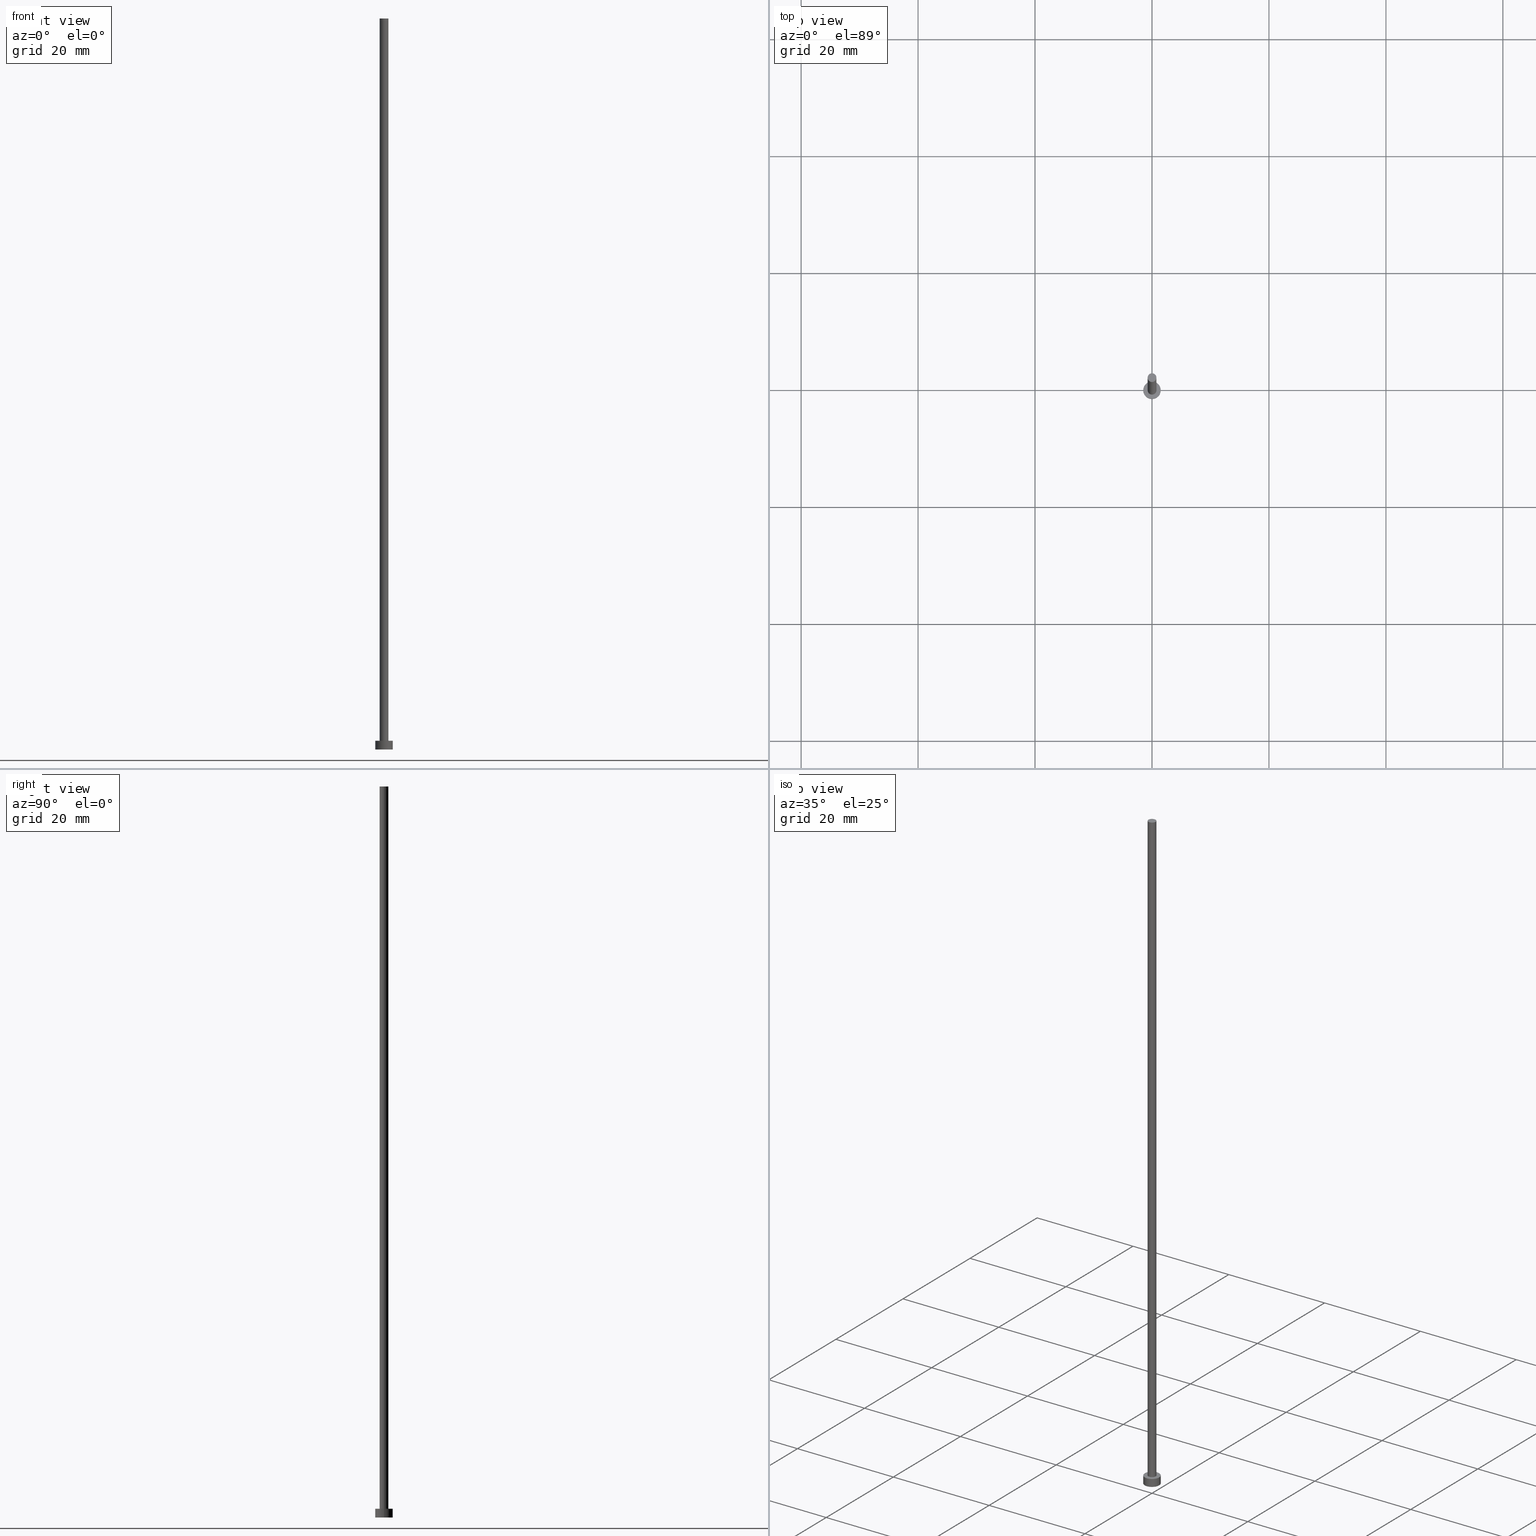
[diagram: canonical four-view strip — front | top / right | iso, engineering-drawing reading convention]
A machine part, canonical four-view strip (front | top / right | iso — engineering-drawing reading convention). The complete STEP part file that produces these views, byte-faithful:
ISO-10303-21;
HEADER;
FILE_DESCRIPTION (( 'STEP AP203' ),
    '1' );
FILE_NAME ('c43a.STEP',
    '2023-02-13T17:18:25',
    ( '' ),
    ( '' ),
    'SwSTEP 2.0',
    'SolidWorks 2019',
    '' );
FILE_SCHEMA (( 'CONFIG_CONTROL_DESIGN' ));
ENDSEC;

DATA;
#1 = PERSON_AND_ORGANIZATION_ROLE ( 'design_owner' ) ;
#2 = CIRCLE ( 'NONE', #82, 1.500000000000000222 ) ;
#3 = EDGE_CURVE ( 'NONE', #176, #21, #44, .T. ) ;
#4 = APPROVAL_PERSON_ORGANIZATION ( #126, #166, #43 ) ;
#5 = COORDINATED_UNIVERSAL_TIME_OFFSET ( 1, 0, .AHEAD. ) ;
#6 = ORIENTED_EDGE ( 'NONE', *, *, #200, .F. ) ;
#7 = CIRCLE ( 'NONE', #204, 1.500000000000000222 ) ;
#8 = CIRCLE ( 'NONE', #42, 0.7500000000000001110 ) ;
#9 = CARTESIAN_POINT ( 'NONE',  ( 0.000000000000000000, 0.000000000000000000, 125.0000000000000000 ) ) ;
#10 = ORIENTED_EDGE ( 'NONE', *, *, #141, .T. ) ;
#11 = ORIENTED_EDGE ( 'NONE', *, *, #135, .F. ) ;
#12 =( GEOMETRIC_REPRESENTATION_CONTEXT ( 3 ) GLOBAL_UNCERTAINTY_ASSIGNED_CONTEXT ( ( #224 ) ) GLOBAL_UNIT_ASSIGNED_CONTEXT ( ( #251, #144, #234 ) ) REPRESENTATION_CONTEXT ( 'NONE', 'WORKASPACE' ) );
#13 = DIRECTION ( 'NONE',  ( 0.000000000000000000, 0.000000000000000000, 1.000000000000000000 ) ) ;
#14 = LINE ( 'NONE', #119, #29 ) ;
#15 = DIRECTION ( 'NONE',  ( -0.000000000000000000, -0.000000000000000000, -1.000000000000000000 ) ) ;
#16 = CC_DESIGN_PERSON_AND_ORGANIZATION_ASSIGNMENT ( #220, #128, ( #158 ) ) ;
#17 = CARTESIAN_POINT ( 'NONE',  ( 0.000000000000000000, 0.000000000000000000, 0.000000000000000000 ) ) ;
#18 = AXIS2_PLACEMENT_3D ( 'NONE', #145, #90, #165 ) ;
#19 = AXIS2_PLACEMENT_3D ( 'NONE', #9, #83, #156 ) ;
#20 = DATE_AND_TIME ( #95, #211 ) ;
#21 = VERTEX_POINT ( 'NONE', #246 ) ;
#22 = CALENDAR_DATE ( 2023, 13, 2 ) ;
#23 = PERSON_AND_ORGANIZATION_ROLE ( 'classification_officer' ) ;
#24 = APPROVAL_DATE_TIME ( #77, #216 ) ;
#25 = EDGE_LOOP ( 'NONE', ( #244, #102 ) ) ;
#26 = CARTESIAN_POINT ( 'NONE',  ( -1.500000000000000222, 0.000000000000000000, 1.500000000000000000 ) ) ;
#27 = EDGE_CURVE ( 'NONE', #197, #230, #7, .T. ) ;
#28 = CARTESIAN_POINT ( 'NONE',  ( 0.000000000000000000, 0.000000000000000000, 125.0000000000000000 ) ) ;
#29 = VECTOR ( 'NONE', #253, 1000.000000000000000 ) ;
#30 = ORIENTED_EDGE ( 'NONE', *, *, #89, .F. ) ;
#31 = ORIENTED_EDGE ( 'NONE', *, *, #130, .F. ) ;
#32 = FACE_OUTER_BOUND ( 'NONE', #229, .T. ) ;
#33 = DIRECTION ( 'NONE',  ( -0.000000000000000000, -0.000000000000000000, -1.000000000000000000 ) ) ;
#34 = CARTESIAN_POINT ( 'NONE',  ( 1.500000000000000222, 1.836970198721030181E-16, 1.500000000000000000 ) ) ;
#35 = CYLINDRICAL_SURFACE ( 'NONE', #48, 1.500000000000000222 ) ;
#36 = ORGANIZATION ( 'NEUR�EN�', 'NEUR�EN�', '' ) ;
#37 = CARTESIAN_POINT ( 'NONE',  ( 0.000000000000000000, 0.000000000000000000, 125.0000000000000000 ) ) ;
#38 = ADVANCED_FACE ( 'NONE', ( #32 ), #116, .T. ) ;
#39 = ORIENTED_EDGE ( 'NONE', *, *, #226, .F. ) ;
#40 = AXIS2_PLACEMENT_3D ( 'NONE', #140, #136, #153 ) ;
#41 = COORDINATED_UNIVERSAL_TIME_OFFSET ( 1, 0, .AHEAD. ) ;
#42 = AXIS2_PLACEMENT_3D ( 'NONE', #181, #51, #69 ) ;
#43 = APPROVAL_ROLE ( '' ) ;
#44 = CIRCLE ( 'NONE', #70, 0.7500000000000001110 ) ;
#45 = DIRECTION ( 'NONE',  ( 1.000000000000000000, 0.000000000000000000, 0.000000000000000000 ) ) ;
#46 = VERTEX_POINT ( 'NONE', #85 ) ;
#47 = EDGE_LOOP ( 'NONE', ( #39, #11, #67, #199 ) ) ;
#48 = AXIS2_PLACEMENT_3D ( 'NONE', #74, #107, #120 ) ;
#49 = ORIENTED_EDGE ( 'NONE', *, *, #141, .F. ) ;
#50 = EDGE_CURVE ( 'NONE', #202, #197, #155, .T. ) ;
#51 = DIRECTION ( 'NONE',  ( 0.000000000000000000, 0.000000000000000000, 1.000000000000000000 ) ) ;
#52 = CIRCLE ( 'NONE', #236, 0.7500000000000001110 ) ;
#53 = CYLINDRICAL_SURFACE ( 'NONE', #63, 1.500000000000000222 ) ;
#54 = CARTESIAN_POINT ( 'NONE',  ( -1.500000000000000222, 0.000000000000000000, 0.000000000000000000 ) ) ;
#55 = DIRECTION ( 'NONE',  ( -1.000000000000000000, 0.000000000000000000, 0.000000000000000000 ) ) ;
#56 = CARTESIAN_POINT ( 'NONE',  ( 0.000000000000000000, 0.000000000000000000, 1.500000000000000000 ) ) ;
#57 = ADVANCED_FACE ( 'NONE', ( #65 ), #66, .T. ) ;
#58 = DIRECTION ( 'NONE',  ( 1.000000000000000000, 0.000000000000000000, 0.000000000000000000 ) ) ;
#59 = AXIS2_PLACEMENT_3D ( 'NONE', #133, #223, #45 ) ;
#60 = APPLICATION_PROTOCOL_DEFINITION ( 'international standard', 'config_control_design', 1994, #149 ) ;
#61 = COORDINATED_UNIVERSAL_TIME_OFFSET ( 1, 0, .AHEAD. ) ;
#62 = DATE_AND_TIME ( #96, #76 ) ;
#63 = AXIS2_PLACEMENT_3D ( 'NONE', #56, #33, #55 ) ;
#64 = EDGE_LOOP ( 'NONE', ( #49, #117, #115, #243 ) ) ;
#65 = FACE_OUTER_BOUND ( 'NONE', #108, .T. ) ;
#66 = CYLINDRICAL_SURFACE ( 'NONE', #40, 0.7500000000000001110 ) ;
#67 = ORIENTED_EDGE ( 'NONE', *, *, #50, .T. ) ;
#68 = FACE_OUTER_BOUND ( 'NONE', #47, .T. ) ;
#69 = DIRECTION ( 'NONE',  ( 1.000000000000000000, 0.000000000000000000, 0.000000000000000000 ) ) ;
#70 = AXIS2_PLACEMENT_3D ( 'NONE', #28, #84, #104 ) ;
#71 = CC_DESIGN_DATE_AND_TIME_ASSIGNMENT ( #93, #131, ( #139 ) ) ;
#72 = APPROVAL_PERSON_ORGANIZATION ( #129, #232, #169 ) ;
#73 = CARTESIAN_POINT ( 'NONE',  ( -0.7500000000000001110, 0.000000000000000000, 125.0000000000000000 ) ) ;
#74 = CARTESIAN_POINT ( 'NONE',  ( 0.000000000000000000, 0.000000000000000000, 1.500000000000000000 ) ) ;
#75 = APPROVAL_DATE_TIME ( #62, #232 ) ;
#76 = LOCAL_TIME ( 18, 18, 25.00000000000000000, #5 ) ;
#77 = DATE_AND_TIME ( #113, #143 ) ;
#78 = SHAPE_DEFINITION_REPRESENTATION ( #124, #132 ) ;
#79 = EDGE_LOOP ( 'NONE', ( #188, #218 ) ) ;
#80 = ADVANCED_FACE ( 'NONE', ( #114, #203 ), #180, .T. ) ;
#81 = DIRECTION ( 'NONE',  ( 0.000000000000000000, 0.000000000000000000, 1.000000000000000000 ) ) ;
#82 = AXIS2_PLACEMENT_3D ( 'NONE', #17, #210, #163 ) ;
#83 = DIRECTION ( 'NONE',  ( 0.000000000000000000, 0.000000000000000000, 1.000000000000000000 ) ) ;
#84 = DIRECTION ( 'NONE',  ( 0.000000000000000000, 0.000000000000000000, 1.000000000000000000 ) ) ;
#85 = CARTESIAN_POINT ( 'NONE',  ( 1.500000000000000222, 1.836970198721030181E-16, 1.500000000000000000 ) ) ;
#86 = DIRECTION ( 'NONE',  ( 1.000000000000000000, 0.000000000000000000, -0.000000000000000000 ) ) ;
#87 = DIRECTION ( 'NONE',  ( 1.000000000000000000, 0.000000000000000000, -0.000000000000000000 ) ) ;
#88 = DIRECTION ( 'NONE',  ( 1.000000000000000000, 0.000000000000000000, 0.000000000000000000 ) ) ;
#89 = EDGE_CURVE ( 'NONE', #46, #202, #109, .T. ) ;
#90 = DIRECTION ( 'NONE',  ( -0.000000000000000000, -0.000000000000000000, -1.000000000000000000 ) ) ;
#91 = LINE ( 'NONE', #34, #195 ) ;
#92 = DIRECTION ( 'NONE',  ( 0.000000000000000000, 0.000000000000000000, 1.000000000000000000 ) ) ;
#93 = DATE_AND_TIME ( #22, #175 ) ;
#94 = EDGE_CURVE ( 'NONE', #176, #198, #173, .T. ) ;
#95 = CALENDAR_DATE ( 2023, 13, 2 ) ;
#96 = CALENDAR_DATE ( 2023, 13, 2 ) ;
#97 = EDGE_LOOP ( 'NONE', ( #30, #174, #161, #138 ) ) ;
#98 = MECHANICAL_CONTEXT ( 'NONE', #146, 'mechanical' ) ;
#99 = CARTESIAN_POINT ( 'NONE',  ( 0.000000000000000000, 0.000000000000000000, 1.500000000000000000 ) ) ;
#100 = AXIS2_PLACEMENT_3D ( 'NONE', #37, #235, #123 ) ;
#101 = CARTESIAN_POINT ( 'NONE',  ( 0.000000000000000000, 0.000000000000000000, 0.000000000000000000 ) ) ;
#102 = ORIENTED_EDGE ( 'NONE', *, *, #248, .F. ) ;
#103 = ORIENTED_EDGE ( 'NONE', *, *, #130, .T. ) ;
#104 = DIRECTION ( 'NONE',  ( 1.000000000000000000, 0.000000000000000000, 0.000000000000000000 ) ) ;
#105 = CYLINDRICAL_SURFACE ( 'NONE', #18, 0.7500000000000001110 ) ;
#106 = CARTESIAN_POINT ( 'NONE',  ( 1.500000000000000222, 1.836970198721030181E-16, 0.000000000000000000 ) ) ;
#107 = DIRECTION ( 'NONE',  ( -0.000000000000000000, -0.000000000000000000, -1.000000000000000000 ) ) ;
#108 = EDGE_LOOP ( 'NONE', ( #31, #10, #152, #177 ) ) ;
#109 = CIRCLE ( 'NONE', #59, 1.500000000000000222 ) ;
#110 = CC_DESIGN_PERSON_AND_ORGANIZATION_ASSIGNMENT ( #219, #191, ( #151 ) ) ;
#111 = APPROVAL_DATE_TIME ( #20, #166 ) ;
#112 = PERSON_AND_ORGANIZATION ( #178, #36 ) ;
#113 = CALENDAR_DATE ( 2023, 13, 2 ) ;
#114 = FACE_BOUND ( 'NONE', #159, .T. ) ;
#115 = ORIENTED_EDGE ( 'NONE', *, *, #94, .T. ) ;
#116 = PLANE ( 'NONE',  #19 ) ;
#117 = ORIENTED_EDGE ( 'NONE', *, *, #3, .F. ) ;
#118 = AXIS2_PLACEMENT_3D ( 'NONE', #231, #205, #87 ) ;
#119 = CARTESIAN_POINT ( 'NONE',  ( 0.7500000000000001110, 9.184850993605150903E-17, 125.0000000000000000 ) ) ;
#120 = DIRECTION ( 'NONE',  ( -1.000000000000000000, 0.000000000000000000, 0.000000000000000000 ) ) ;
#121 = DIRECTION ( 'NONE',  ( 0.000000000000000000, 0.000000000000000000, 1.000000000000000000 ) ) ;
#122 = APPROVAL_PERSON_ORGANIZATION ( #213, #216, #255 ) ;
#123 = DIRECTION ( 'NONE',  ( 1.000000000000000000, 0.000000000000000000, 0.000000000000000000 ) ) ;
#124 = PRODUCT_DEFINITION_SHAPE ( 'NONE', 'NONE',  #158 ) ;
#125 = ADVANCED_FACE ( 'NONE', ( #68 ), #53, .T. ) ;
#126 = PERSON_AND_ORGANIZATION ( #178, #36 ) ;
#127 = AXIS2_PLACEMENT_3D ( 'NONE', #162, #212, #208 ) ;
#128 = PERSON_AND_ORGANIZATION_ROLE ( 'creator' ) ;
#129 = PERSON_AND_ORGANIZATION ( #178, #36 ) ;
#130 = EDGE_CURVE ( 'NONE', #21, #176, #215, .T. ) ;
#131 = DATE_TIME_ROLE ( 'classification_date' ) ;
#132 = ADVANCED_BREP_SHAPE_REPRESENTATION ( 'c43a', ( #228, #160 ), #12 ) ;
#133 = CARTESIAN_POINT ( 'NONE',  ( 0.000000000000000000, 0.000000000000000000, 1.500000000000000000 ) ) ;
#134 = ORIENTED_EDGE ( 'NONE', *, *, #3, .T. ) ;
#135 = EDGE_CURVE ( 'NONE', #202, #46, #250, .T. ) ;
#136 = DIRECTION ( 'NONE',  ( -0.000000000000000000, -0.000000000000000000, -1.000000000000000000 ) ) ;
#137 = PRODUCT ( 'c43a', 'c43a', '', ( #98 ) ) ;
#138 = ORIENTED_EDGE ( 'NONE', *, *, #50, .F. ) ;
#139 = SECURITY_CLASSIFICATION ( '', '', #192 ) ;
#140 = CARTESIAN_POINT ( 'NONE',  ( 0.000000000000000000, 0.000000000000000000, 125.0000000000000000 ) ) ;
#141 = EDGE_CURVE ( 'NONE', #21, #227, #14, .T. ) ;
#142 = FACE_OUTER_BOUND ( 'NONE', #25, .T. ) ;
#143 = LOCAL_TIME ( 18, 18, 25.00000000000000000, #254 ) ;
#144 =( NAMED_UNIT ( * ) PLANE_ANGLE_UNIT ( ) SI_UNIT ( $, .RADIAN. ) );
#145 = CARTESIAN_POINT ( 'NONE',  ( 0.000000000000000000, 0.000000000000000000, 125.0000000000000000 ) ) ;
#146 = APPLICATION_CONTEXT ( 'configuration controlled 3d designs of mechanical parts and assemblies' ) ;
#147 = CC_DESIGN_PERSON_AND_ORGANIZATION_ASSIGNMENT ( #112, #240, ( #151 ) ) ;
#148 = COORDINATED_UNIVERSAL_TIME_OFFSET ( 1, 0, .AHEAD. ) ;
#149 = APPLICATION_CONTEXT ( 'configuration controlled 3d designs of mechanical parts and assemblies' ) ;
#150 = CALENDAR_DATE ( 2023, 13, 2 ) ;
#151 = PRODUCT_DEFINITION_FORMATION_WITH_SPECIFIED_SOURCE ( 'LIBOVOLN�', '', #137, .NOT_KNOWN. ) ;
#152 = ORIENTED_EDGE ( 'NONE', *, *, #242, .T. ) ;
#153 = DIRECTION ( 'NONE',  ( -1.000000000000000000, 0.000000000000000000, 0.000000000000000000 ) ) ;
#154 = ADVANCED_FACE ( 'NONE', ( #233 ), #35, .T. ) ;
#155 = LINE ( 'NONE', #26, #179 ) ;
#156 = DIRECTION ( 'NONE',  ( 1.000000000000000000, 0.000000000000000000, -0.000000000000000000 ) ) ;
#157 = CLOSED_SHELL ( 'NONE', ( #57, #154, #125, #80, #238, #207, #38 ) ) ;
#158 = PRODUCT_DEFINITION ( 'NEZN�M�', '', #151, #190 ) ;
#159 = EDGE_LOOP ( 'NONE', ( #6, #225 ) ) ;
#160 = AXIS2_PLACEMENT_3D ( 'NONE', #187, #92, #58 ) ;
#161 = ORIENTED_EDGE ( 'NONE', *, *, #248, .T. ) ;
#162 = CARTESIAN_POINT ( 'NONE',  ( 0.000000000000000000, 0.000000000000000000, 1.500000000000000000 ) ) ;
#163 = DIRECTION ( 'NONE',  ( 1.000000000000000000, 0.000000000000000000, 0.000000000000000000 ) ) ;
#164 = CC_DESIGN_PERSON_AND_ORGANIZATION_ASSIGNMENT ( #194, #23, ( #139 ) ) ;
#165 = DIRECTION ( 'NONE',  ( -1.000000000000000000, 0.000000000000000000, 0.000000000000000000 ) ) ;
#166 = APPROVAL ( #214, 'NEUR�EN�' ) ;
#167 = DIRECTION ( 'NONE',  ( -0.000000000000000000, -0.000000000000000000, -1.000000000000000000 ) ) ;
#168 = APPLICATION_PROTOCOL_DEFINITION ( 'international standard', 'config_control_design', 1994, #146 ) ;
#169 = APPROVAL_ROLE ( '' ) ;
#170 = APPROVAL_STATUS ( 'not_yet_approved' ) ;
#171 = CC_DESIGN_APPROVAL ( #166, ( #151 ) ) ;
#172 = PRODUCT_RELATED_PRODUCT_CATEGORY ( 'detail', '', ( #137 ) ) ;
#173 = LINE ( 'NONE', #182, #221 ) ;
#174 = ORIENTED_EDGE ( 'NONE', *, *, #226, .T. ) ;
#175 = LOCAL_TIME ( 18, 18, 25.00000000000000000, #61 ) ;
#176 = VERTEX_POINT ( 'NONE', #73 ) ;
#177 = ORIENTED_EDGE ( 'NONE', *, *, #94, .F. ) ;
#178 = PERSON ( 'NEUR�EN�', 'NEUR�EN�', 'NEUR�EN�', ('NEUR�EN�'), ('NEUR�EN�'), ('NEUR�EN�') ) ;
#179 = VECTOR ( 'NONE', #245, 1000.000000000000000 ) ;
#180 = PLANE ( 'NONE',  #189 ) ;
#181 = CARTESIAN_POINT ( 'NONE',  ( 0.000000000000000000, 0.000000000000000000, 1.500000000000000000 ) ) ;
#182 = CARTESIAN_POINT ( 'NONE',  ( -0.7500000000000001110, 0.000000000000000000, 125.0000000000000000 ) ) ;
#183 = PLANE ( 'NONE',  #118 ) ;
#184 = CC_DESIGN_APPROVAL ( #216, ( #158 ) ) ;
#185 = CARTESIAN_POINT ( 'NONE',  ( 0.000000000000000000, 0.000000000000000000, 1.500000000000000000 ) ) ;
#186 = FACE_OUTER_BOUND ( 'NONE', #64, .T. ) ;
#187 = CARTESIAN_POINT ( 'NONE',  ( 0.000000000000000000, 0.000000000000000000, 0.000000000000000000 ) ) ;
#188 = ORIENTED_EDGE ( 'NONE', *, *, #135, .T. ) ;
#189 = AXIS2_PLACEMENT_3D ( 'NONE', #99, #13, #86 ) ;
#190 = DESIGN_CONTEXT ( 'detailed design', #149, 'design' ) ;
#191 = PERSON_AND_ORGANIZATION_ROLE ( 'creator' ) ;
#192 = SECURITY_CLASSIFICATION_LEVEL ( 'unclassified' ) ;
#193 = DATE_TIME_ROLE ( 'creation_date' ) ;
#194 = PERSON_AND_ORGANIZATION ( #178, #36 ) ;
#195 = VECTOR ( 'NONE', #167, 1000.000000000000000 ) ;
#196 = CC_DESIGN_DATE_AND_TIME_ASSIGNMENT ( #217, #193, ( #158 ) ) ;
#197 = VERTEX_POINT ( 'NONE', #54 ) ;
#198 = VERTEX_POINT ( 'NONE', #249 ) ;
#199 = ORIENTED_EDGE ( 'NONE', *, *, #27, .T. ) ;
#200 = EDGE_CURVE ( 'NONE', #198, #227, #52, .T. ) ;
#201 = CC_DESIGN_APPROVAL ( #232, ( #139 ) ) ;
#202 = VERTEX_POINT ( 'NONE', #209 ) ;
#203 = FACE_OUTER_BOUND ( 'NONE', #79, .T. ) ;
#204 = AXIS2_PLACEMENT_3D ( 'NONE', #101, #81, #247 ) ;
#205 = DIRECTION ( 'NONE',  ( 0.000000000000000000, 0.000000000000000000, 1.000000000000000000 ) ) ;
#206 = LOCAL_TIME ( 18, 18, 25.00000000000000000, #148 ) ;
#207 = ADVANCED_FACE ( 'NONE', ( #186 ), #105, .T. ) ;
#208 = DIRECTION ( 'NONE',  ( 1.000000000000000000, 0.000000000000000000, 0.000000000000000000 ) ) ;
#209 = CARTESIAN_POINT ( 'NONE',  ( -1.500000000000000222, 0.000000000000000000, 1.500000000000000000 ) ) ;
#210 = DIRECTION ( 'NONE',  ( 0.000000000000000000, 0.000000000000000000, 1.000000000000000000 ) ) ;
#211 = LOCAL_TIME ( 18, 18, 25.00000000000000000, #41 ) ;
#212 = DIRECTION ( 'NONE',  ( 0.000000000000000000, 0.000000000000000000, 1.000000000000000000 ) ) ;
#213 = PERSON_AND_ORGANIZATION ( #178, #36 ) ;
#214 = APPROVAL_STATUS ( 'not_yet_approved' ) ;
#215 = CIRCLE ( 'NONE', #100, 0.7500000000000001110 ) ;
#216 = APPROVAL ( #170, 'NEUR�EN�' ) ;
#217 = DATE_AND_TIME ( #150, #206 ) ;
#218 = ORIENTED_EDGE ( 'NONE', *, *, #89, .T. ) ;
#219 = PERSON_AND_ORGANIZATION ( #178, #36 ) ;
#220 = PERSON_AND_ORGANIZATION ( #178, #36 ) ;
#221 = VECTOR ( 'NONE', #15, 1000.000000000000000 ) ;
#222 = CC_DESIGN_PERSON_AND_ORGANIZATION_ASSIGNMENT ( #237, #1, ( #137 ) ) ;
#223 = DIRECTION ( 'NONE',  ( 0.000000000000000000, 0.000000000000000000, 1.000000000000000000 ) ) ;
#224 = UNCERTAINTY_MEASURE_WITH_UNIT (LENGTH_MEASURE( 1.000000000000000082E-05 ), #251, 'distance_accuracy_value', 'NONE');
#225 = ORIENTED_EDGE ( 'NONE', *, *, #242, .F. ) ;
#226 = EDGE_CURVE ( 'NONE', #46, #230, #91, .T. ) ;
#227 = VERTEX_POINT ( 'NONE', #252 ) ;
#228 = MANIFOLD_SOLID_BREP ( 'P�idat vysunut�m3', #157 ) ;
#229 = EDGE_LOOP ( 'NONE', ( #134, #103 ) ) ;
#230 = VERTEX_POINT ( 'NONE', #106 ) ;
#231 = CARTESIAN_POINT ( 'NONE',  ( 0.000000000000000000, 0.000000000000000000, 0.000000000000000000 ) ) ;
#232 = APPROVAL ( #241, 'NEUR�EN�' ) ;
#233 = FACE_OUTER_BOUND ( 'NONE', #97, .T. ) ;
#234 =( NAMED_UNIT ( * ) SI_UNIT ( $, .STERADIAN. ) SOLID_ANGLE_UNIT ( ) );
#235 = DIRECTION ( 'NONE',  ( 0.000000000000000000, 0.000000000000000000, 1.000000000000000000 ) ) ;
#236 = AXIS2_PLACEMENT_3D ( 'NONE', #185, #121, #88 ) ;
#237 = PERSON_AND_ORGANIZATION ( #178, #36 ) ;
#238 = ADVANCED_FACE ( 'NONE', ( #142 ), #183, .F. ) ;
#239 = CC_DESIGN_SECURITY_CLASSIFICATION ( #139, ( #151 ) ) ;
#240 = PERSON_AND_ORGANIZATION_ROLE ( 'design_supplier' ) ;
#241 = APPROVAL_STATUS ( 'not_yet_approved' ) ;
#242 = EDGE_CURVE ( 'NONE', #227, #198, #8, .T. ) ;
#243 = ORIENTED_EDGE ( 'NONE', *, *, #200, .T. ) ;
#244 = ORIENTED_EDGE ( 'NONE', *, *, #27, .F. ) ;
#245 = DIRECTION ( 'NONE',  ( -0.000000000000000000, -0.000000000000000000, -1.000000000000000000 ) ) ;
#246 = CARTESIAN_POINT ( 'NONE',  ( 0.7500000000000001110, 9.184850993605150903E-17, 125.0000000000000000 ) ) ;
#247 = DIRECTION ( 'NONE',  ( 1.000000000000000000, 0.000000000000000000, 0.000000000000000000 ) ) ;
#248 = EDGE_CURVE ( 'NONE', #230, #197, #2, .T. ) ;
#249 = CARTESIAN_POINT ( 'NONE',  ( -0.7500000000000001110, 0.000000000000000000, 1.500000000000000000 ) ) ;
#250 = CIRCLE ( 'NONE', #127, 1.500000000000000222 ) ;
#251 =( LENGTH_UNIT ( ) NAMED_UNIT ( * ) SI_UNIT ( .MILLI., .METRE. ) );
#252 = CARTESIAN_POINT ( 'NONE',  ( 0.7500000000000001110, 9.184850993605150903E-17, 1.500000000000000000 ) ) ;
#253 = DIRECTION ( 'NONE',  ( -0.000000000000000000, -0.000000000000000000, -1.000000000000000000 ) ) ;
#254 = COORDINATED_UNIVERSAL_TIME_OFFSET ( 1, 0, .AHEAD. ) ;
#255 = APPROVAL_ROLE ( '' ) ;
ENDSEC;
END-ISO-10303-21;
